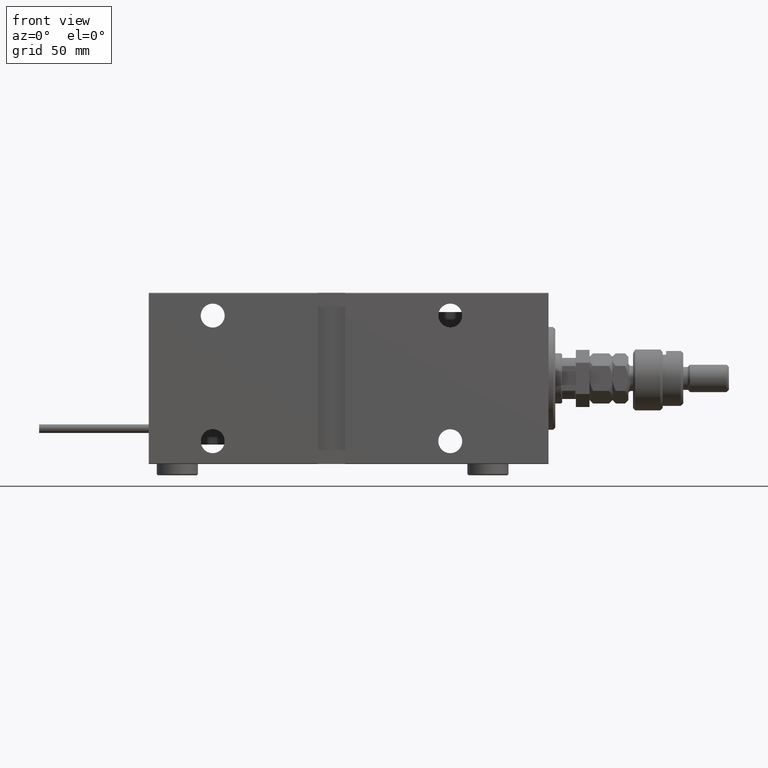
[diagram: clean part render]
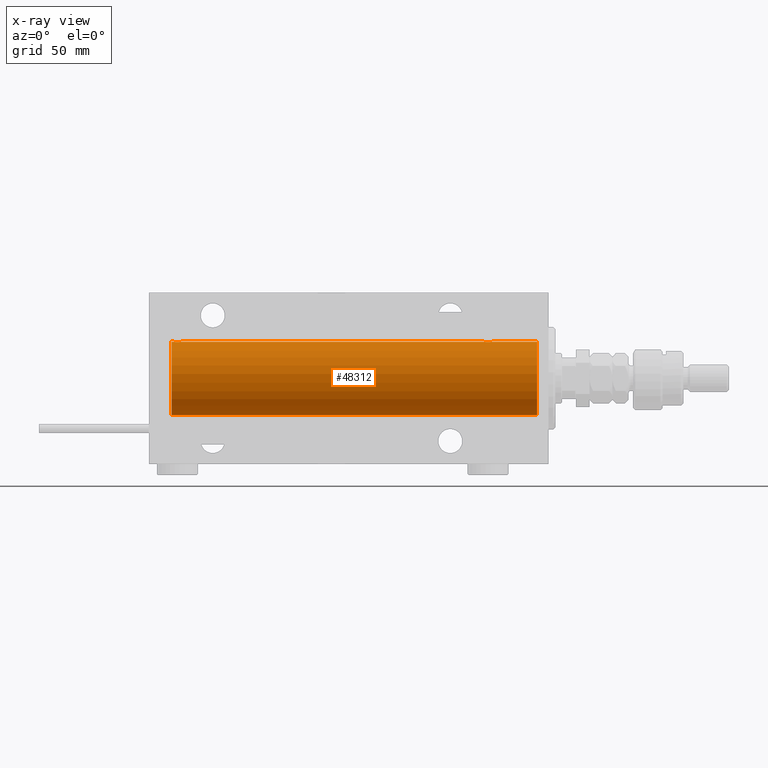
[diagram: x-ray — body ghosted, one internal face saturated and labeled with its STEP entity id]
A machine part, front view, then the same camera in x-ray: the body is ghosted and one INTERNAL B-rep face — a face not visible from any outside direction — is saturated and labeled: STEP entity #48312.
In plain terms, the highlighted cylindrical surface (edge-blend (fillet) strip) has radius 16 mm, axis along (1, 0, -0).
Its self-contained STEP definition (entity closure, byte-faithful):
#352 = DIRECTION ( 'NONE',  ( 0.000000000000000000, 0.000000000000000000, 1.000000000000000000 ) ) ;
#911 = LINE ( 'NONE', #1184, #1936 ) ;
#1184 = CARTESIAN_POINT ( 'NONE',  ( 165.0000000000000000, 1.959434878635765131E-15, -16.00000000000000000 ) ) ;
#1382 = VERTEX_POINT ( 'NONE', #37661 ) ;
#1936 = VECTOR ( 'NONE', #13491, 1000.000000000000000 ) ;
#1946 = CARTESIAN_POINT ( 'NONE',  ( 160.9099847189987429, 1.220169175415112273, 15.95377581882983797 ) ) ;
#2212 = CARTESIAN_POINT ( 'NONE',  ( 164.3975887005559287, 0.6452446332038104249, 15.98744362947834929 ) ) ;
#2558 = ORIENTED_EDGE ( 'NONE', *, *, #51640, .T. ) ;
#2684 = CARTESIAN_POINT ( 'NONE',  ( 25.98086902289887234, 1.935876924222074358, 15.88247600692093187 ) ) ;
#2955 = CARTESIAN_POINT ( 'NONE',  ( 28.48700524008413382, 0.2623312429553315561, 15.99836091803360105 ) ) ;
#3213 = CARTESIAN_POINT ( 'NONE',  ( 25.28032342557723311, 1.590393755196000347, 15.92092783521424337 ) ) ;
#5329 = LINE ( 'NONE', #9718, #30457 ) ;
#6182 = VERTEX_POINT ( 'NONE', #27294 ) ;
#6598 = CARTESIAN_POINT ( 'NONE',  ( 160.4999999999999716, -2.738767290746308786E-23, 16.00000000000000000 ) ) ;
#6900 = VECTOR ( 'NONE', #47323, 1000.000000000000000 ) ;
#7485 = B_SPLINE_CURVE_WITH_KNOTS ( 'NONE', 3,
 ( #36067, #44265, #2955, #48604, #15274, #11167, #45057, #48874, #23479, #36331, #11425, #27844, #7594, #52174, #28103, #2684, #40693, #10903, #19100, #3213, #35801, #48079, #31938, #49139, #44539, #27314, #11691, #40959, #10633, #14742 ),
 .UNSPECIFIED., .F., .F.,
 ( 4, 2, 2, 2, 2, 2, 2, 2, 2, 2, 2, 2, 2, 2, 4 ),
 ( 1.745049934674283425E-18, 0.0003911894522871204737, 0.0007823789045742392126, 0.001173568356861357789, 0.001564757809148476691, 0.002347136713722706037, 0.003129515618296936034, 0.003520705070584051466, 0.003911894522871166464, 0.004303083975158282330, 0.004694273427445396461, 0.005085462879732512327, 0.005476652332019627326, 0.005867841784306743191, 0.006259031236593858190 ),
 .UNSPECIFIED. ) ;
#7594 = CARTESIAN_POINT ( 'NONE',  ( 26.76191462762254858, 1.999903730784154066, 15.87451999516785861 ) ) ;
#7928 = ORIENTED_EDGE ( 'NONE', *, *, #45426, .F. ) ;
#8081 = EDGE_CURVE ( 'NONE', #13041, #29523, #42608, .T. ) ;
#8702 = DIRECTION ( 'NONE',  ( -1.000000000000000000, -0.000000000000000000, -0.000000000000000000 ) ) ;
#8851 = EDGE_CURVE ( 'NONE', #6182, #52255, #5329, .T. ) ;
#9695 = DIRECTION ( 'NONE',  ( -1.000000000000000000, -0.000000000000000000, -0.000000000000000000 ) ) ;
#9718 = CARTESIAN_POINT ( 'NONE',  ( 165.0000000000000000, 0.000000000000000000, 16.00000000000000000 ) ) ;
#9890 = CARTESIAN_POINT ( 'NONE',  ( 164.2971341474821259, 0.8874076679346705188, 15.97583181162461052 ) ) ;
#9904 = VECTOR ( 'NONE', #8702, 1000.000000000000000 ) ;
#10429 = CARTESIAN_POINT ( 'NONE',  ( 161.8561303196698304, 1.898058445420882867, 15.88709929148890687 ) ) ;
#10633 = CARTESIAN_POINT ( 'NONE',  ( 24.49999999999999289, 0.1305944228192297274, 15.99999999999999645 ) ) ;
#10699 = CARTESIAN_POINT ( 'NONE',  ( 160.6021627350110634, 0.6445079780200521080, 15.98747331501412461 ) ) ;
#10903 = CARTESIAN_POINT ( 'NONE',  ( 25.61382242942729803, 1.797743958659254515, 15.89876304682112007 ) ) ;
#11167 = CARTESIAN_POINT ( 'NONE',  ( 28.29713414748220046, 0.8874076679346754037, 15.97583181162460697 ) ) ;
#11425 = CARTESIAN_POINT ( 'NONE',  ( 27.50659181559580446, 1.747750603376297729, 15.90457341008072056 ) ) ;
#11691 = CARTESIAN_POINT ( 'NONE',  ( 24.56430947073869930, 0.5198215460038717595, 15.99206840425678955 ) ) ;
#13041 = VERTEX_POINT ( 'NONE', #13757 ) ;
#13264 = EDGE_CURVE ( 'NONE', #18213, #27048, #27099, .T. ) ;
#13491 = DIRECTION ( 'NONE',  ( -1.000000000000000000, -0.000000000000000000, -0.000000000000000000 ) ) ;
#13757 = CARTESIAN_POINT ( 'NONE',  ( 5.000000000000004441, 0.000000000000000000, 16.00000000000000000 ) ) ;
#14353 = CIRCLE ( 'NONE', #44069, 16.00000000000000000 ) ;
#14601 = EDGE_CURVE ( 'NONE', #52255, #1382, #7485, .T. ) ;
#14742 = CARTESIAN_POINT ( 'NONE',  ( 24.50000000000000000, -2.739635037742051899E-23, 16.00000000000000000 ) ) ;
#15068 = CARTESIAN_POINT ( 'NONE',  ( 161.9808690228987871, 1.935876924222065476, 15.88247600692093187 ) ) ;
#15274 = CARTESIAN_POINT ( 'NONE',  ( 28.39758870055591444, 0.6452446332038146437, 15.98744362947834574 ) ) ;
#15291 = CARTESIAN_POINT ( 'NONE',  ( 165.0000000000000000, 1.959434878635765131E-15, -16.00000000000000000 ) ) ;
#16769 = CARTESIAN_POINT ( 'NONE',  ( 165.0000000000000000, 0.000000000000000000, 0.000000000000000000 ) ) ;
#17623 = FACE_OUTER_BOUND ( 'NONE', #19966, .T. ) ;
#18213 = VERTEX_POINT ( 'NONE', #36191 ) ;
#18328 = CARTESIAN_POINT ( 'NONE',  ( 5.000000000000004441, 1.959434878635765131E-15, -16.00000000000000000 ) ) ;
#18892 = CARTESIAN_POINT ( 'NONE',  ( 163.7295611173978784, 1.598790766515151063, 15.92099550861380486 ) ) ;
#18996 = AXIS2_PLACEMENT_3D ( 'NONE', #40926, #32973, #53467 ) ;
#19100 = CARTESIAN_POINT ( 'NONE',  ( 25.49688752964961225, 1.735145127817741439, 15.90580292899658410 ) ) ;
#19157 = ORIENTED_EDGE ( 'NONE', *, *, #8081, .T. ) ;
#19166 = CARTESIAN_POINT ( 'NONE',  ( 164.2356809849825936, 1.002241074716290425, 15.96895041604535770 ) ) ;
#19966 = EDGE_LOOP ( 'NONE', ( #7928, #25553, #42423, #41723, #42844, #41782, #2558, #19157 ) ) ;
#21691 = CARTESIAN_POINT ( 'NONE',  ( 164.4999999999999716, -5.805030688536432137E-15, 16.00000000000000000 ) ) ;
#22007 = DIRECTION ( 'NONE',  ( -1.000000000000000000, -0.000000000000000000, -0.000000000000000000 ) ) ;
#22645 = EDGE_CURVE ( 'NONE', #27048, #6182, #32305, .T. ) ;
#22733 = CARTESIAN_POINT ( 'NONE',  ( 164.4999999999999716, -5.805030688536432137E-15, 16.00000000000000000 ) ) ;
#23479 = CARTESIAN_POINT ( 'NONE',  ( 28.00610712468246177, 1.322357532253821910, 15.94553003295878391 ) ) ;
#23548 = CARTESIAN_POINT ( 'NONE',  ( 164.4999999999999716, 0.1322838750249260009, 16.00000000000000000 ) ) ;
#25381 = LINE ( 'NONE', #37968, #9904 ) ;
#25553 = ORIENTED_EDGE ( 'NONE', *, *, #53288, .F. ) ;
#26835 = CARTESIAN_POINT ( 'NONE',  ( 163.0253175645940757, 1.947280337074153156, 15.88137861827787134 ) ) ;
#27048 = VERTEX_POINT ( 'NONE', #21691 ) ;
#27099 = LINE ( 'NONE', #43518, #6900 ) ;
#27294 = CARTESIAN_POINT ( 'NONE',  ( 160.4999999999999716, -2.738767290746308786E-23, 16.00000000000000000 ) ) ;
#27314 = CARTESIAN_POINT ( 'NONE',  ( 24.60216273501104567, 0.6445079780200539954, 15.98747331501412461 ) ) ;
#27379 = CARTESIAN_POINT ( 'NONE',  ( 160.5130907516787602, 0.2632563459770754233, 15.99834873924246459 ) ) ;
#27844 = CARTESIAN_POINT ( 'NONE',  ( 27.02531756459403667, 1.947280337074160927, 15.88137861827786779 ) ) ;
#28103 = CARTESIAN_POINT ( 'NONE',  ( 26.23748416992101085, 1.987008272775788731, 15.87616016863256618 ) ) ;
#29523 = VERTEX_POINT ( 'NONE', #18328 ) ;
#29932 = CARTESIAN_POINT ( 'NONE',  ( 165.0000000000000000, 0.000000000000000000, 0.000000000000000000 ) ) ;
#30190 = DIRECTION ( 'NONE',  ( 0.000000000000000000, 0.000000000000000000, 1.000000000000000000 ) ) ;
#30457 = VECTOR ( 'NONE', #22007, 1000.000000000000000 ) ;
#30655 = CARTESIAN_POINT ( 'NONE',  ( 161.1792417517106628, 1.507649250492124393, 15.92908549642226745 ) ) ;
#30749 = CYLINDRICAL_SURFACE ( 'NONE', #32489, 16.00000000000000000 ) ;
#30936 = CARTESIAN_POINT ( 'NONE',  ( 164.0061071246824440, 1.322357532253825241, 15.94553003295877325 ) ) ;
#31202 = CARTESIAN_POINT ( 'NONE',  ( 164.0905150485209560, 1.219564485341775528, 15.95382484008322699 ) ) ;
#31476 = CARTESIAN_POINT ( 'NONE',  ( 163.5065918155957831, 1.747750603376286627, 15.90457341008072412 ) ) ;
#31748 = CARTESIAN_POINT ( 'NONE',  ( 162.7619146276225308, 1.999903730784151401, 15.87451999516785506 ) ) ;
#31938 = CARTESIAN_POINT ( 'NONE',  ( 24.90998471899876066, 1.220169175415113827, 15.95377581882983442 ) ) ;
#32305 = B_SPLINE_CURVE_WITH_KNOTS ( 'NONE', 3,
 ( #22733, #23548, #51968, #39700, #2212, #9890, #19166, #31202, #30936, #18892, #31476, #26835, #31748, #52240, #39431, #15068, #10429, #40232, #48139, #35589, #30655, #35863, #1946, #36134, #43531, #10699, #47875, #27379, #44067, #6598 ),
 .UNSPECIFIED., .F., .F.,
 ( 4, 2, 2, 2, 2, 2, 2, 2, 2, 2, 2, 2, 2, 2, 4 ),
 ( 5.640563159279031920E-18, 0.0003911894522871212868, 0.0007823789045742369358, 0.001173568356861352585, 0.001564757809148468234, 0.002347136713722699532, 0.003129515618296930830, 0.003520705070584046695, 0.003911894522871162995, 0.004303083975158277993, 0.004694273427445393859, 0.005085462879732509725, 0.005476652332019624723, 0.005867841784306740589, 0.006259031236593856455 ),
 .UNSPECIFIED. ) ;
#32489 = AXIS2_PLACEMENT_3D ( 'NONE', #29932, #9695, #30190 ) ;
#32973 = DIRECTION ( 'NONE',  ( -1.000000000000000000, 0.000000000000000000, 0.000000000000000000 ) ) ;
#33459 = DIRECTION ( 'NONE',  ( -1.000000000000000000, 0.000000000000000000, 0.000000000000000000 ) ) ;
#35589 = CARTESIAN_POINT ( 'NONE',  ( 161.2803234255772225, 1.590393755195991243, 15.92092783521423627 ) ) ;
#35801 = CARTESIAN_POINT ( 'NONE',  ( 25.17924175171067702, 1.507649250492130388, 15.92908549642226745 ) ) ;
#35863 = CARTESIAN_POINT ( 'NONE',  ( 160.9926283968756593, 1.321075116345874489, 15.94564302722883298 ) ) ;
#36067 = CARTESIAN_POINT ( 'NONE',  ( 28.49999999999999645, -1.207828523974853969E-15, 16.00000000000000000 ) ) ;
#36134 = CARTESIAN_POINT ( 'NONE',  ( 160.7651732932504274, 1.003662148334358406, 15.96885838080210362 ) ) ;
#36191 = CARTESIAN_POINT ( 'NONE',  ( 165.0000000000000000, 0.000000000000000000, 16.00000000000000000 ) ) ;
#36331 = CARTESIAN_POINT ( 'NONE',  ( 27.72956111739783580, 1.598790766515148620, 15.92099550861380131 ) ) ;
#37661 = CARTESIAN_POINT ( 'NONE',  ( 24.50000000000000000, -2.739635037742051899E-23, 16.00000000000000000 ) ) ;
#37968 = CARTESIAN_POINT ( 'NONE',  ( 165.0000000000000000, 0.000000000000000000, 16.00000000000000000 ) ) ;
#39431 = CARTESIAN_POINT ( 'NONE',  ( 162.2374841699209469, 1.987008272775783402, 15.87616016863256618 ) ) ;
#39700 = CARTESIAN_POINT ( 'NONE',  ( 164.4361132668205414, 0.5181437283162098062, 15.99211983514074298 ) ) ;
#40232 = CARTESIAN_POINT ( 'NONE',  ( 161.6138224294272732, 1.797743958659255181, 15.89876304682111652 ) ) ;
#40693 = CARTESIAN_POINT ( 'NONE',  ( 25.85613031966986952, 1.898058445420883311, 15.88709929148890510 ) ) ;
#40926 = CARTESIAN_POINT ( 'NONE',  ( 5.000000000000004441, 0.000000000000000000, 0.000000000000000000 ) ) ;
#40959 = CARTESIAN_POINT ( 'NONE',  ( 24.51309075167874596, 0.2632563459770819736, 15.99834873924246459 ) ) ;
#41723 = ORIENTED_EDGE ( 'NONE', *, *, #22645, .T. ) ;
#41782 = ORIENTED_EDGE ( 'NONE', *, *, #14601, .T. ) ;
#42423 = ORIENTED_EDGE ( 'NONE', *, *, #13264, .T. ) ;
#42608 = CIRCLE ( 'NONE', #18996, 16.00000000000000000 ) ;
#42844 = ORIENTED_EDGE ( 'NONE', *, *, #8851, .T. ) ;
#43518 = CARTESIAN_POINT ( 'NONE',  ( 165.0000000000000000, 0.000000000000000000, 16.00000000000000000 ) ) ;
#43531 = CARTESIAN_POINT ( 'NONE',  ( 160.7025007139496324, 0.8866640484200066785, 15.97587307151817804 ) ) ;
#44067 = CARTESIAN_POINT ( 'NONE',  ( 160.5000000000000000, 0.1305944228192312262, 16.00000000000000355 ) ) ;
#44069 = AXIS2_PLACEMENT_3D ( 'NONE', #16769, #33459, #352 ) ;
#44265 = CARTESIAN_POINT ( 'NONE',  ( 28.49999999999998579, 0.1322838750249257511, 16.00000000000000000 ) ) ;
#44539 = CARTESIAN_POINT ( 'NONE',  ( 24.70250071394960045, 0.8866640484200088990, 15.97587307151817448 ) ) ;
#45057 = CARTESIAN_POINT ( 'NONE',  ( 28.23568098498261492, 1.002241074716280655, 15.96895041604536480 ) ) ;
#45426 = EDGE_CURVE ( 'NONE', #50364, #29523, #911, .T. ) ;
#47323 = DIRECTION ( 'NONE',  ( -1.000000000000000000, -0.000000000000000000, -0.000000000000000000 ) ) ;
#47875 = CARTESIAN_POINT ( 'NONE',  ( 160.5643094707386922, 0.5198215460038647651, 15.99206840425679310 ) ) ;
#48079 = CARTESIAN_POINT ( 'NONE',  ( 24.99262839687570903, 1.321075116345881595, 15.94564302722883298 ) ) ;
#48139 = CARTESIAN_POINT ( 'NONE',  ( 161.4968875296495696, 1.735145127817734556, 15.90580292899658410 ) ) ;
#48312 = ADVANCED_FACE ( 'NONE', ( #17623 ), #30749, .F. ) ;
#48604 = CARTESIAN_POINT ( 'NONE',  ( 28.43611326682063378, 0.5181437283162068086, 15.99211983514074298 ) ) ;
#48874 = CARTESIAN_POINT ( 'NONE',  ( 28.09051504852099512, 1.219564485341767091, 15.95382484008323409 ) ) ;
#49139 = CARTESIAN_POINT ( 'NONE',  ( 24.76517329325045225, 1.003662148334361959, 15.96885838080210007 ) ) ;
#50364 = VERTEX_POINT ( 'NONE', #15291 ) ;
#51640 = EDGE_CURVE ( 'NONE', #1382, #13041, #25381, .T. ) ;
#51797 = CARTESIAN_POINT ( 'NONE',  ( 28.49999999999999645, -1.207828523974853969E-15, 16.00000000000000000 ) ) ;
#51968 = CARTESIAN_POINT ( 'NONE',  ( 164.4870052400841303, 0.2623312429553350533, 15.99836091803360105 ) ) ;
#52174 = CARTESIAN_POINT ( 'NONE',  ( 26.37014691649501685, 2.000047931387139322, 15.87450182760079187 ) ) ;
#52240 = CARTESIAN_POINT ( 'NONE',  ( 162.3701469164949742, 2.000047931387135325, 15.87450182760079898 ) ) ;
#52255 = VERTEX_POINT ( 'NONE', #51797 ) ;
#53288 = EDGE_CURVE ( 'NONE', #18213, #50364, #14353, .T. ) ;
#53467 = DIRECTION ( 'NONE',  ( 0.000000000000000000, 0.000000000000000000, 1.000000000000000000 ) ) ;